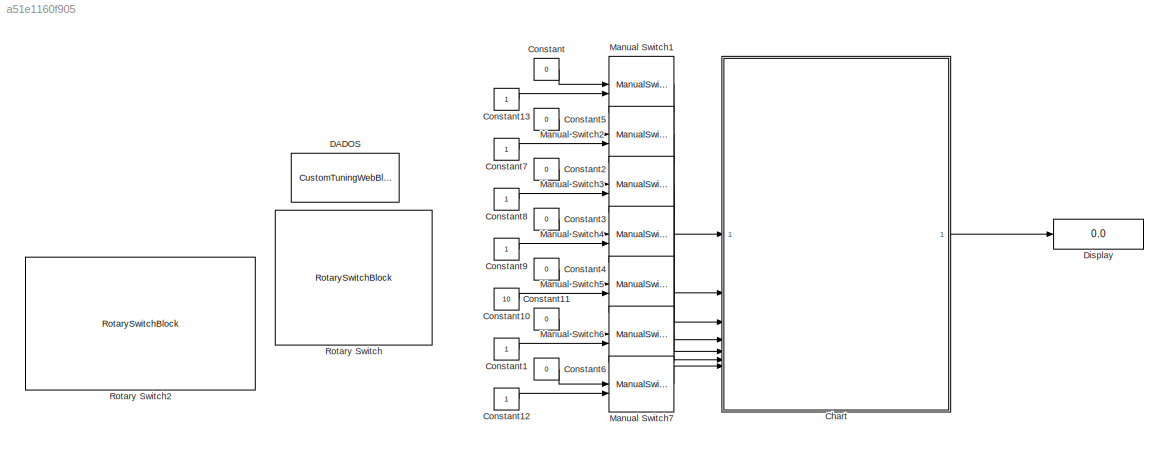
MODEL slx_a51e1160f905
KIND model
CONFIG AbsTol = auto
CONFIG EnableMultiTasking = off
CONFIG FixedStep = auto
CONFIG MaxStep = auto
CONFIG MinStep = auto
CONFIG RelTol = 1e-3
CONFIG SampleTimeConstraint = Unconstrained
CONFIG SolverName = VariableStepAuto
CONFIG StartTime = 0.0
CONFIG StopTime = Inf
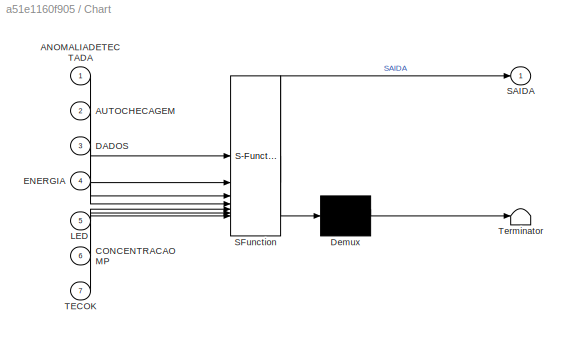
BLOCK [SubSystem] Chart
  ErrorFcn = Stateflow.Translate.translate
  PermitHierarchicalResolution = ExplicitOnly
  SFBlockType = Chart
  TreatAsAtomicUnit = on
BLOCK [Demux] Chart/ Demux 
  Outputs = 1
BLOCK [S-Function] Chart/ SFunction 
  EnableBusSupport = on
  FunctionName = sf_sfun
  PortCounts = [7 2]
  SFcnIsStateOwnerBlock = off
  SFunctionDeploymentMode = off
  Tag = Stateflow S-Function 3
BLOCK [Terminator] Chart/ Terminator 
BLOCK [Inport] Chart/ANOMALIADETECTADA
BLOCK [Inport] Chart/AUTOCHECAGEM
  Port = 2
BLOCK [Inport] Chart/CONCENTRACAOMP
  Port = 6
BLOCK [Inport] Chart/DADOS
  Port = 3
BLOCK [Inport] Chart/ENERGIA
  Port = 4
BLOCK [Inport] Chart/LED
  Port = 5
BLOCK [Outport] Chart/SAIDA
BLOCK [Inport] Chart/TECOK
  Port = 7
BLOCK [Constant] Constant
  Value = 0
BLOCK [Constant] Constant1
BLOCK [Constant] Constant10
  Value = 10
BLOCK [Constant] Constant11
  Value = 0
BLOCK [Constant] Constant12
BLOCK [Constant] Constant13
BLOCK [Constant] Constant2
  Value = 0
BLOCK [Constant] Constant3
  Value = 0
BLOCK [Constant] Constant4
  Value = 0
BLOCK [Constant] Constant5
  Value = 0
BLOCK [Constant] Constant6
  Value = 0
BLOCK [Constant] Constant7
BLOCK [Constant] Constant8
BLOCK [Constant] Constant9
BLOCK [CustomTuningWebBlock] DADOS
  Configuration = {"components":[{"name":"CustomSwitchStateComponent","settings":{"position":[0,0,1,1],"states":[{"HitRegion":{"position":[0,0,0.5,1]},"Image":{"position":[0.13,0,1,0.75],"size":[1,0.75],"src":"data:image\/svg+xml;base64,PHN2ZyB4bWxucz0iaHR0cDovL3d3dy53My5vcmcvMjAwMC9zdmciIHhtbG5zOnhsaW5rPSJodHRwOi8vd3d3LnczLm9yZy8xOTk5L3hsaW5rIiB2aWV3Qm94PSIwIDAgNzUgMjQuOCI+PGRlZnM+PHN0eWxlPi5jbHMtMXtmaWxsOnVybCgjc...<+8994ch>
  LabelPosition = Hide
  ShowInitialText = on
BLOCK [Display] Display
  Decimation = 1
BLOCK [ManualSwitch] Manual Switch1
BLOCK [ManualSwitch] Manual Switch2
  CurrentSetting = 0
BLOCK [ManualSwitch] Manual Switch3
BLOCK [ManualSwitch] Manual Switch4
  CurrentSetting = 0
BLOCK [ManualSwitch] Manual Switch5
  CurrentSetting = 0
BLOCK [ManualSwitch] Manual Switch6
  CurrentSetting = 0
BLOCK [ManualSwitch] Manual Switch7
BLOCK [RotarySwitchBlock] Rotary Switch
BLOCK [RotarySwitchBlock] Rotary Switch2
LINE Chart:1 -> Display:1
LINE Constant10:1 -> Manual Switch5:2
LINE Constant11:1 -> Manual Switch6:1
LINE Constant12:1 -> Manual Switch7:2
LINE Constant13:1 -> Manual Switch1:2
LINE Constant1:1 -> Manual Switch6:2
LINE Constant2:1 -> Manual Switch3:1
LINE Constant3:1 -> Manual Switch4:1
LINE Constant4:1 -> Manual Switch5:1
LINE Constant5:1 -> Manual Switch2:1
LINE Constant6:1 -> Manual Switch7:1
LINE Constant7:1 -> Manual Switch2:2
LINE Constant8:1 -> Manual Switch3:2
LINE Constant9:1 -> Manual Switch4:2
LINE Constant:1 -> Manual Switch1:1
LINE Manual Switch1:1 -> Chart:1
LINE Manual Switch2:1 -> Chart:2
LINE Manual Switch3:1 -> Chart:3
LINE Manual Switch4:1 -> Chart:4
LINE Manual Switch5:1 -> Chart:5
LINE Manual Switch6:1 -> Chart:6
LINE Manual Switch7:1 -> Chart:7
CHART Chart states=10 transitions=34
  STATE_LABEL 'DESENERGIZADO'
  STATE_LABEL 'DESLIGADO'
  STATE_LABEL 'LEDVERDE'
  STATE_LABEL 'AUTOCHECAGEM'
  STATE_LABEL 'LEITURA'
  STATE_LABEL 'LED1AMARELO'
  STATE_LABEL 'COLETA\nDADOS'
  STATE_LABEL 'REINICIAR \n'
  STATE_LABEL 'LED2VERMELHO'
  STATE_LABEL 'ALERTA\n\n'
CHART  states=0 transitions=0
